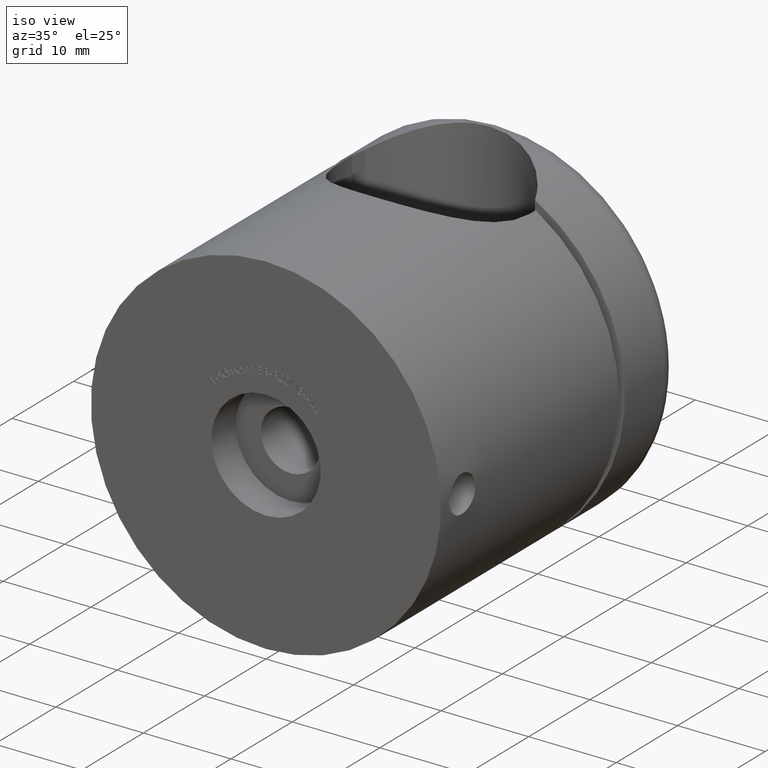
[diagram: clean part render]
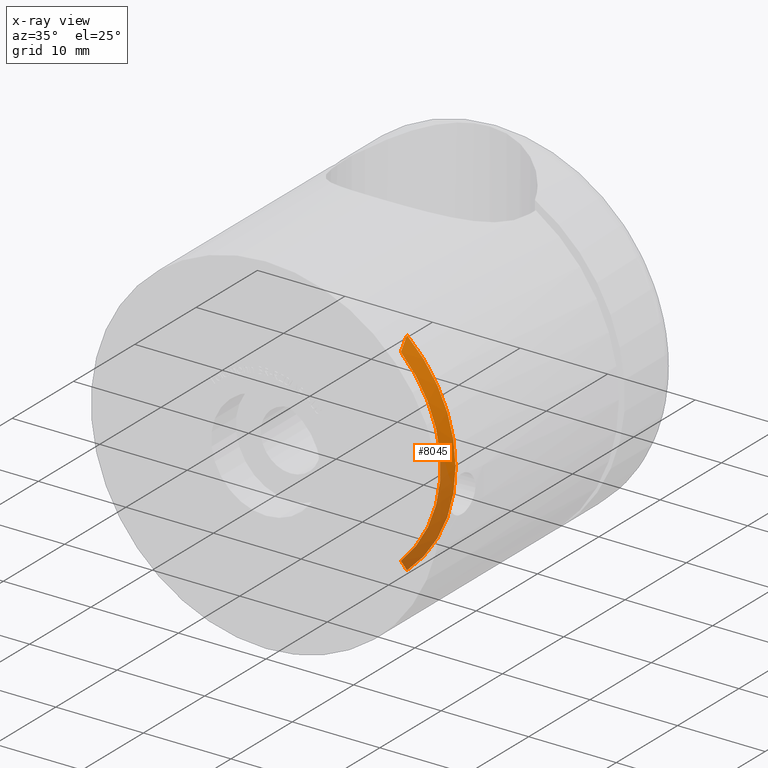
[diagram: x-ray — body ghosted, one internal face saturated and labeled with its STEP entity id]
A machine part, iso view, then the same camera in x-ray: the body is ghosted and one INTERNAL B-rep face — a face not visible from any outside direction — is saturated and labeled: STEP entity #8045.
In plain terms, the highlighted conical surface has half-angle 45 deg.
Its self-contained STEP definition (entity closure, byte-faithful):
#433 = CARTESIAN_POINT ( 'NONE',  ( 10.49999999999999822, 31.99999999999998579, 12.13888380371111708 ) ) ;
#937 = B_SPLINE_CURVE_WITH_KNOTS ( 'NONE', 3,
 ( #3315, #14824, #16118, #8457 ),
 .UNSPECIFIED., .F., .F.,
 ( 4, 4 ),
 ( 0.05069551608525437597, 0.05235184866637616896 ),
 .UNSPECIFIED. ) ;
#1277 = AXIS2_PLACEMENT_3D ( 'NONE', #10366, #5246, #6311 ) ;
#1284 = EDGE_CURVE ( 'NONE', #6191, #12346, #5534, .T. ) ;
#1360 = CARTESIAN_POINT ( 'NONE',  ( 10.49999999999999822, 33.00000000000000000, 10.78204526052454604 ) ) ;
#1675 = DIRECTION ( 'NONE',  ( -1.776356839400250465E-15, 0.000000000000000000, 1.000000000000000000 ) ) ;
#1965 = VERTEX_POINT ( 'NONE', #6741 ) ;
#2017 = FACE_OUTER_BOUND ( 'NONE', #5882, .T. ) ;
#3095 = DIRECTION ( 'NONE',  ( 0.000000000000000000, -1.000000000000000000, 0.000000000000000000 ) ) ;
#3245 = CONICAL_SURFACE ( 'NONE', #4535, 15.04999999999999361, 0.7853981633974447263 ) ;
#3315 = CARTESIAN_POINT ( 'NONE',  ( 10.49999999999999822, 33.00000000000000000, -10.78204526052454604 ) ) ;
#4358 = CARTESIAN_POINT ( 'NONE',  ( 0.000000000000000000, 31.99999999999998579, 0.000000000000000000 ) ) ;
#4451 = CIRCLE ( 'NONE', #8007, 16.05000000000000071 ) ;
#4535 = AXIS2_PLACEMENT_3D ( 'NONE', #10718, #5538, #12301 ) ;
#5246 = DIRECTION ( 'NONE',  ( 0.000000000000000000, 1.000000000000000000, 0.000000000000000000 ) ) ;
#5386 = VERTEX_POINT ( 'NONE', #7497 ) ;
#5534 = B_SPLINE_CURVE_WITH_KNOTS ( 'NONE', 3,
 ( #8465, #12208, #16077, #11002 ),
 .UNSPECIFIED., .F., .F.,
 ( 4, 4 ),
 ( 0.02552079506277117257, 0.02721524744244011723 ),
 .UNSPECIFIED. ) ;
#5538 = DIRECTION ( 'NONE',  ( 0.000000000000000000, -1.000000000000000000, 0.000000000000000000 ) ) ;
#5772 = ORIENTED_EDGE ( 'NONE', *, *, #12101, .F. ) ;
#5882 = EDGE_LOOP ( 'NONE', ( #14405, #5772, #16343, #10637 ) ) ;
#6191 = VERTEX_POINT ( 'NONE', #433 ) ;
#6311 = DIRECTION ( 'NONE',  ( 0.000000000000000000, 0.000000000000000000, 1.000000000000000000 ) ) ;
#6741 = CARTESIAN_POINT ( 'NONE',  ( 10.49999999999999822, 33.00000000000000000, -10.78204526052454604 ) ) ;
#7497 = CARTESIAN_POINT ( 'NONE',  ( 10.49999999999999822, 31.99999999999998579, -12.13888380371111708 ) ) ;
#8007 = AXIS2_PLACEMENT_3D ( 'NONE', #4358, #3095, #1675 ) ;
#8043 = EDGE_CURVE ( 'NONE', #1965, #5386, #937, .T. ) ;
#8045 = ADVANCED_FACE ( 'NONE', ( #2017 ), #3245, .T. ) ;
#8457 = CARTESIAN_POINT ( 'NONE',  ( 10.49999999999999822, 31.99999999999998579, -12.13888380371111708 ) ) ;
#8465 = CARTESIAN_POINT ( 'NONE',  ( 10.49999999999999822, 31.99999999999998579, 12.13888380371111708 ) ) ;
#10005 = CIRCLE ( 'NONE', #1277, 15.04999999999999361 ) ;
#10366 = CARTESIAN_POINT ( 'NONE',  ( 0.000000000000000000, 33.00000000000000000, 0.000000000000000000 ) ) ;
#10637 = ORIENTED_EDGE ( 'NONE', *, *, #15205, .F. ) ;
#10718 = CARTESIAN_POINT ( 'NONE',  ( 0.000000000000000000, 33.00000000000000000, 0.000000000000000000 ) ) ;
#11002 = CARTESIAN_POINT ( 'NONE',  ( 10.49999999999999822, 33.00000000000000000, 10.78204526052454604 ) ) ;
#12101 = EDGE_CURVE ( 'NONE', #5386, #6191, #4451, .T. ) ;
#12208 = CARTESIAN_POINT ( 'NONE',  ( 10.49999999999999822, 32.33906804518726830, 11.69056893281729437 ) ) ;
#12301 = DIRECTION ( 'NONE',  ( 0.000000000000000000, 0.000000000000000000, -1.000000000000000000 ) ) ;
#12346 = VERTEX_POINT ( 'NONE', #1360 ) ;
#14405 = ORIENTED_EDGE ( 'NONE', *, *, #1284, .F. ) ;
#14824 = CARTESIAN_POINT ( 'NONE',  ( 10.49999999999999822, 32.67241968975808675, -11.23929465523734805 ) ) ;
#15205 = EDGE_CURVE ( 'NONE', #12346, #1965, #10005, .T. ) ;
#16077 = CARTESIAN_POINT ( 'NONE',  ( 10.49999999999999822, 32.67289524878784590, 11.23863085136479256 ) ) ;
#16118 = CARTESIAN_POINT ( 'NONE',  ( 10.49999999999999822, 32.33858786806781183, -11.69120382173227490 ) ) ;
#16343 = ORIENTED_EDGE ( 'NONE', *, *, #8043, .F. ) ;